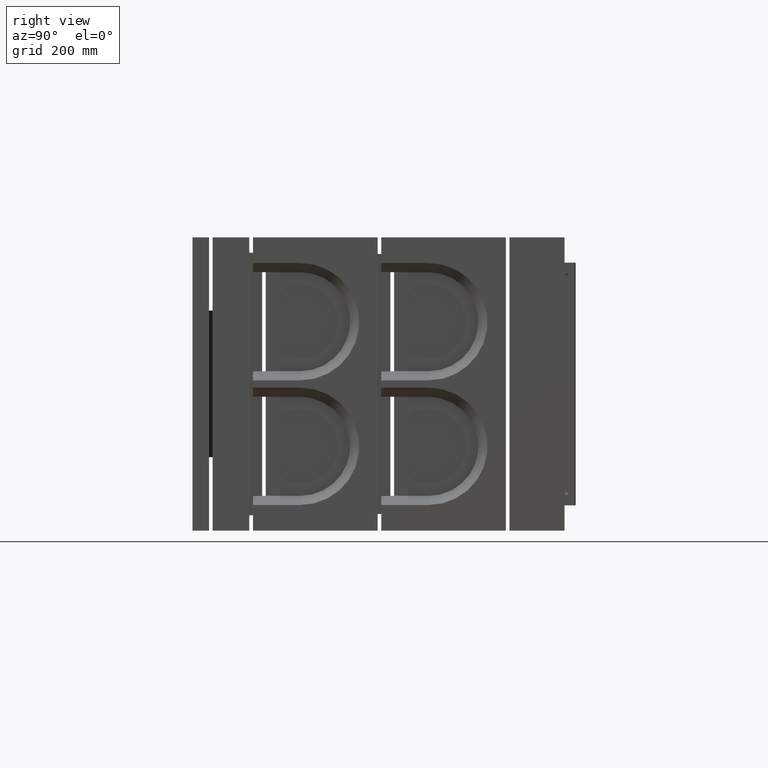
[diagram: clean part render]
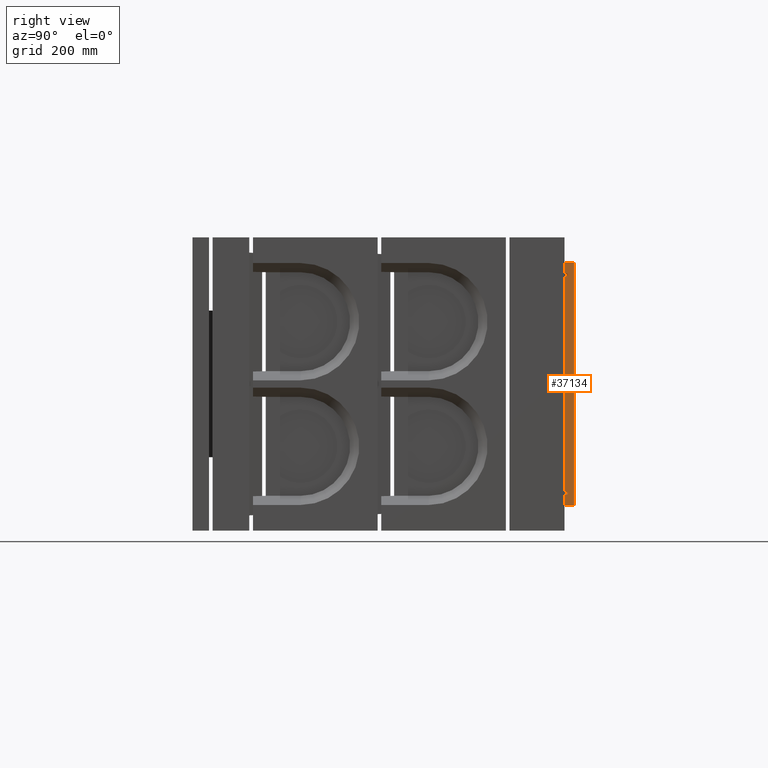
[diagram: same view with one face highlighted and labeled with its STEP entity id]
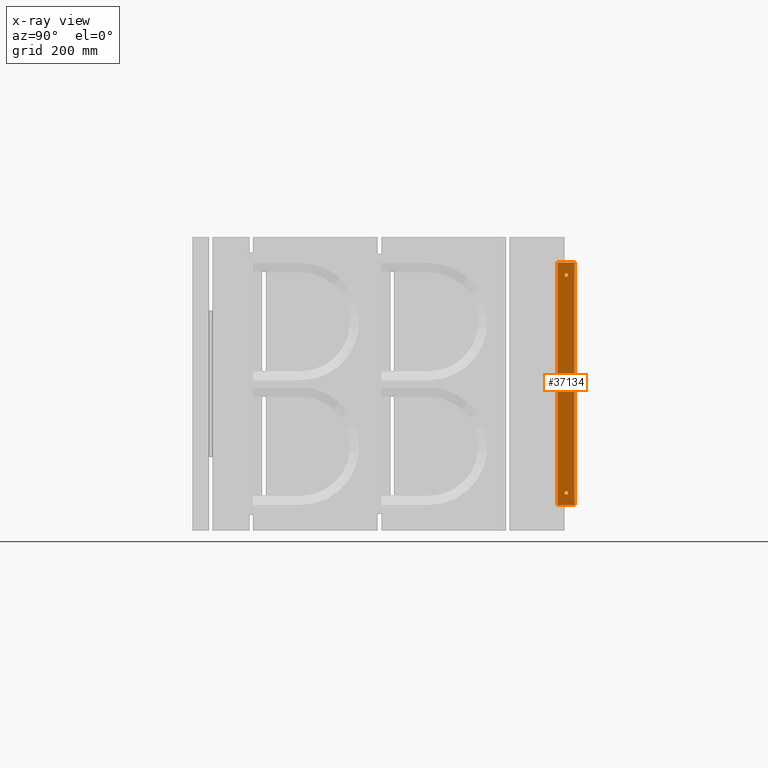
[diagram: x-ray of the same camera — body ghosted, the highlighted face saturated]
A machine part, right view. The second image highlights one B-rep face of the part: STEP entity #37134.
The next image is the same camera in x-ray: the body ghosted, the highlighted face saturated — about 0% of this face is hidden behind the body in this view.
In plain terms, the highlighted planar face has unit normal (-1, 0, 0).
Its self-contained STEP definition (entity closure, byte-faithful):
#56 = VECTOR ( 'NONE', #12308, 1000.000000000000000 ) ;
#368 = CARTESIAN_POINT ( 'NONE',  ( 655.4999999999998863, 1020.000000000000455, -296.9999999999999432 ) ) ;
#2010 = CIRCLE ( 'NONE', #22316, 4.999999999999893419 ) ;
#2063 = CARTESIAN_POINT ( 'NONE',  ( 655.4999999999998863, 1042.000000000000455, -330.9999999999998863 ) ) ;
#2893 = LINE ( 'NONE', #3575, #56 ) ;
#3575 = CARTESIAN_POINT ( 'NONE',  ( 655.4999999999998863, 1042.000000000000455, -330.9999999999998863 ) ) ;
#4138 = VERTEX_POINT ( 'NONE', #19666 ) ;
#4891 = DIRECTION ( 'NONE',  ( -5.548162402315609455E-16, -1.000000000000000000, -5.551115123125712444E-17 ) ) ;
#7447 = ORIENTED_EDGE ( 'NONE', *, *, #8720, .F. ) ;
#8720 = EDGE_CURVE ( 'NONE', #34701, #9340, #14788, .T. ) ;
#8805 = CARTESIAN_POINT ( 'NONE',  ( 655.4999999999998863, 1042.000000000000455, -330.9999999999998863 ) ) ;
#9340 = VERTEX_POINT ( 'NONE', #17760 ) ;
#9551 = VERTEX_POINT ( 'NONE', #33792 ) ;
#9909 = CARTESIAN_POINT ( 'NONE',  ( 655.4999999999998863, 995.0000000000004547, -330.9999999999998863 ) ) ;
#10759 = CARTESIAN_POINT ( 'NONE',  ( 655.4999999999998863, 1015.000000000000568, -296.9999999999999432 ) ) ;
#11827 = DIRECTION ( 'NONE',  ( 5.548162402315608469E-16, 1.000000000000000000, 5.551115123125712444E-17 ) ) ;
#12308 = DIRECTION ( 'NONE',  ( -1.479114197289397135E-31, -5.551115123125723538E-17, 1.000000000000000000 ) ) ;
#12927 = DIRECTION ( 'NONE',  ( -1.479114197289397135E-31, -5.551115123125723538E-17, 1.000000000000000000 ) ) ;
#14563 = VERTEX_POINT ( 'NONE', #37403 ) ;
#14788 = LINE ( 'NONE', #34140, #31615 ) ;
#14948 = AXIS2_PLACEMENT_3D ( 'NONE', #8805, #23610, #11827 ) ;
#15587 = EDGE_CURVE ( 'NONE', #4138, #4138, #2010, .T. ) ;
#17506 = PLANE ( 'NONE',  #14948 ) ;
#17566 = DIRECTION ( 'NONE',  ( 0.0000000000000000000, -1.000000000000000000, 0.0000000000000000000 ) ) ;
#17760 = CARTESIAN_POINT ( 'NONE',  ( 655.4999999999998863, 995.0000000000004547, -330.9999999999998863 ) ) ;
#17915 = FACE_OUTER_BOUND ( 'NONE', #31353, .T. ) ;
#18179 = DIRECTION ( 'NONE',  ( 1.000000000000000000, -5.548162402315607483E-16, -5.236890359418868922E-32 ) ) ;
#19666 = CARTESIAN_POINT ( 'NONE',  ( 655.4999999999998863, 1015.000000000000568, 297.0000000000001705 ) ) ;
#21145 = DIRECTION ( 'NONE',  ( 0.0000000000000000000, -1.000000000000000000, 0.0000000000000000000 ) ) ;
#21640 = LINE ( 'NONE', #9909, #23990 ) ;
#21947 = ORIENTED_EDGE ( 'NONE', *, *, #36984, .F. ) ;
#22316 = AXIS2_PLACEMENT_3D ( 'NONE', #35026, #29154, #17566 ) ;
#22396 = ORIENTED_EDGE ( 'NONE', *, *, #25058, .F. ) ;
#23548 = EDGE_CURVE ( 'NONE', #34701, #9551, #2893, .T. ) ;
#23610 = DIRECTION ( 'NONE',  ( -1.000000000000000000, 5.548162402315608469E-16, 5.236890359418868922E-32 ) ) ;
#23990 = VECTOR ( 'NONE', #12927, 1000.000000000000000 ) ;
#25058 = EDGE_CURVE ( 'NONE', #34452, #34452, #34012, .T. ) ;
#26471 = AXIS2_PLACEMENT_3D ( 'NONE', #368, #18179, #21145 ) ;
#26939 = LINE ( 'NONE', #34921, #34903 ) ;
#29036 = EDGE_LOOP ( 'NONE', ( #36748 ) ) ;
#29154 = DIRECTION ( 'NONE',  ( -1.000000000000000000, 5.548162402315607483E-16, 5.236890359418868922E-32 ) ) ;
#31353 = EDGE_LOOP ( 'NONE', ( #37052, #21947, #7447, #37428 ) ) ;
#31386 = DIRECTION ( 'NONE',  ( -5.548162402315609455E-16, -1.000000000000000000, -5.551115123125712444E-17 ) ) ;
#31422 = FACE_BOUND ( 'NONE', #32888, .T. ) ;
#31615 = VECTOR ( 'NONE', #31386, 1000.000000000000000 ) ;
#32888 = EDGE_LOOP ( 'NONE', ( #22396 ) ) ;
#33792 = CARTESIAN_POINT ( 'NONE',  ( 655.4999999999998863, 1042.000000000000455, 331.0000000000001137 ) ) ;
#34012 = CIRCLE ( 'NONE', #26471, 4.999999999999893419 ) ;
#34140 = CARTESIAN_POINT ( 'NONE',  ( 655.4999999999998863, 1042.000000000000455, -330.9999999999998863 ) ) ;
#34452 = VERTEX_POINT ( 'NONE', #10759 ) ;
#34701 = VERTEX_POINT ( 'NONE', #2063 ) ;
#34903 = VECTOR ( 'NONE', #4891, 1000.000000000000000 ) ;
#34921 = CARTESIAN_POINT ( 'NONE',  ( 655.4999999999998863, 1042.000000000000455, 331.0000000000001137 ) ) ;
#35026 = CARTESIAN_POINT ( 'NONE',  ( 655.4999999999998863, 1020.000000000000455, 297.0000000000001705 ) ) ;
#35818 = EDGE_CURVE ( 'NONE', #9551, #14563, #26939, .T. ) ;
#36082 = FACE_BOUND ( 'NONE', #29036, .T. ) ;
#36748 = ORIENTED_EDGE ( 'NONE', *, *, #15587, .T. ) ;
#36984 = EDGE_CURVE ( 'NONE', #9340, #14563, #21640, .T. ) ;
#37052 = ORIENTED_EDGE ( 'NONE', *, *, #35818, .T. ) ;
#37134 = ADVANCED_FACE ( 'NONE', ( #36082, #31422, #17915 ), #17506, .F. ) ;
#37403 = CARTESIAN_POINT ( 'NONE',  ( 655.4999999999998863, 995.0000000000003411, 331.0000000000001137 ) ) ;
#37428 = ORIENTED_EDGE ( 'NONE', *, *, #23548, .T. ) ;